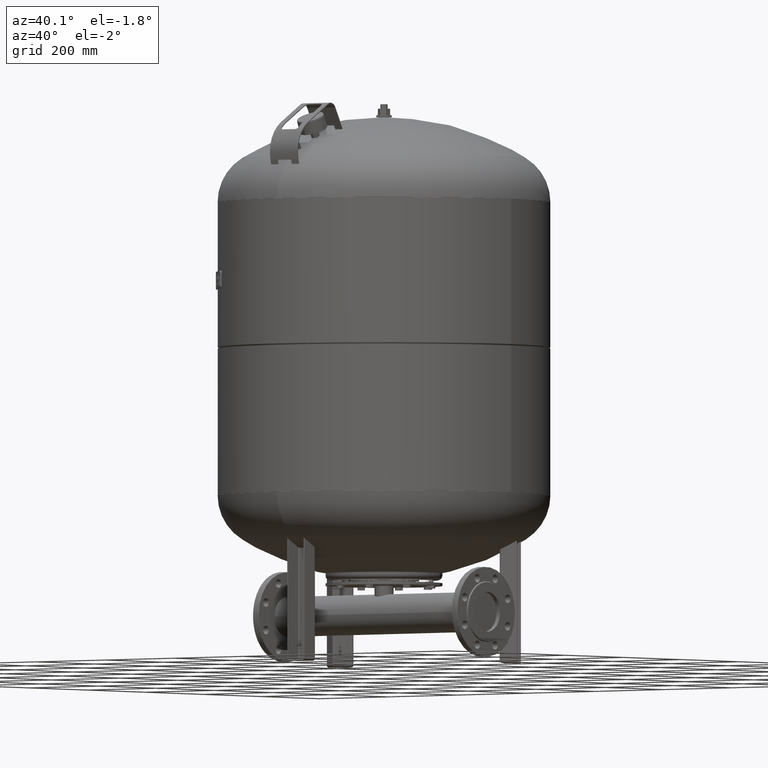
[diagram: clean part render]
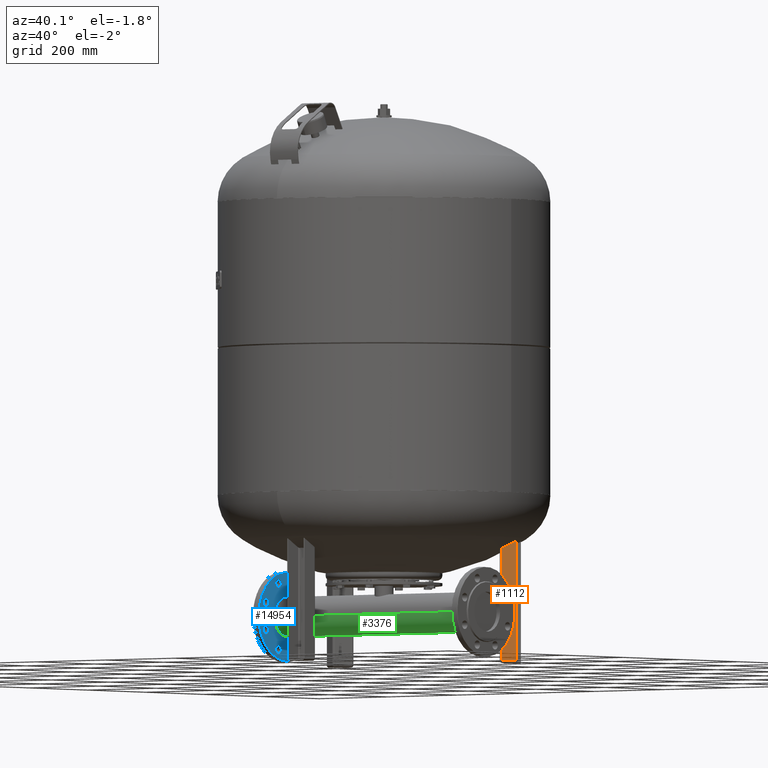
[diagram: same view with three faces highlighted in distinct colors, each labeled with its STEP entity id]
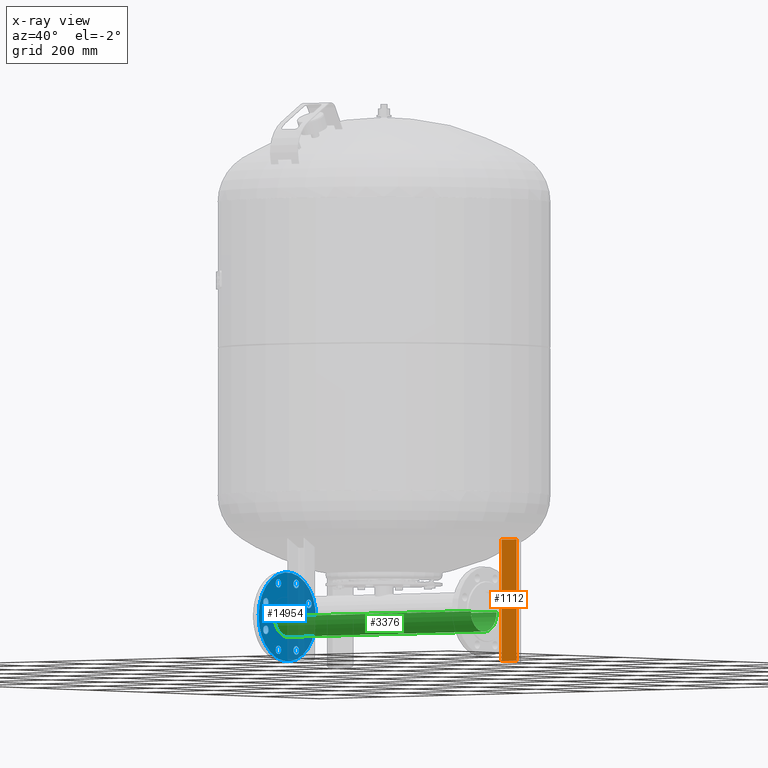
[diagram: x-ray of the same camera — body ghosted, the three highlighted faces saturated]
A machine part, auxiliary view with three faces highlighted in distinct colors.
The next image is the same camera in x-ray (body ghosted, the three faces saturated) — at least one of them is partly hidden behind the body in this view.
Their STEP definitions:

[orange] entity #1112 — the highlighted planar face has unit normal (0.5, -0.866, -0).
#284=CARTESIAN_POINT('',(246.326859021798440,113.349364905388970,274.0));
#285=VERTEX_POINT('',#284);
#293=CARTESIAN_POINT('',(275.771722750469340,130.349364905388970,274.0));
#294=VERTEX_POINT('',#293);
#295=CARTESIAN_POINT('',(275.771722750469340,130.349364905388970,274.0));
#296=DIRECTION('',(-0.866025403784438,-0.500000000000000,0.0));
#297=VECTOR('',#296,33.999999999999986);
#298=LINE('',#295,#297);
#299=EDGE_CURVE('',#294,#285,#298,.T.);
#604=CARTESIAN_POINT('',(275.771722750469340,130.349364905388970,4.999999999999996));
#605=VERTEX_POINT('',#604);
#606=CARTESIAN_POINT('',(275.771722750469340,130.349364905388970,4.999999999999996));
#607=DIRECTION('',(0.0,0.0,1.0));
#608=VECTOR('',#607,269.0);
#609=LINE('',#606,#608);
#610=EDGE_CURVE('',#605,#294,#609,.T.);
#987=CARTESIAN_POINT('',(246.326859021798440,113.349364905388980,4.999999999999996));
#988=VERTEX_POINT('',#987);
#989=CARTESIAN_POINT('',(275.771722750469340,130.349364905388970,4.999999999999996));
#990=DIRECTION('',(-0.866025403784439,-0.500000000000000,0.0));
#991=VECTOR('',#990,33.999999999999979);
#992=LINE('',#989,#991);
#993=EDGE_CURVE('',#605,#988,#992,.T.);
#1090=CARTESIAN_POINT('',(246.326859021798440,113.349364905388980,4.999999999999996));
#1091=DIRECTION('',(0.0,0.0,1.0));
#1092=VECTOR('',#1091,269.0);
#1093=LINE('',#1090,#1092);
#1094=EDGE_CURVE('',#988,#285,#1093,.T.);
#1101=CARTESIAN_POINT('',(276.637748154253810,130.849364905388970,-4.592425E-015));
#1102=DIRECTION('',(0.500000000000000,-0.866025403784439,-1.836970E-016));
#1103=DIRECTION('',(0.866025403784439,0.500000000000000,4.078893E-032));
#1104=AXIS2_PLACEMENT_3D('',#1101,#1102,#1103);
#1105=PLANE('',#1104);
#1106=ORIENTED_EDGE('',*,*,#610,.T.);
#1107=ORIENTED_EDGE('',*,*,#299,.T.);
#1108=ORIENTED_EDGE('',*,*,#1094,.F.);
#1109=ORIENTED_EDGE('',*,*,#993,.F.);
#1110=EDGE_LOOP('',(#1106,#1107,#1108,#1109));
#1111=FACE_OUTER_BOUND('',#1110,.T.);
#1112=ADVANCED_FACE('',(#1111),#1105,.T.);

[blue] entity #14954 — the highlighted face is a freeform B-spline surface patch.
#13961=CARTESIAN_POINT('',(-281.0,-34.250167196675491,175.133507042045720));
#13962=VERTEX_POINT('',#13961);
#13971=CARTESIAN_POINT('',(-281.0,-26.979181981738783,192.687218159760160));
#13972=VERTEX_POINT('',#13971);
#13973=CARTESIAN_POINT('',(-281.0,-30.614674589207137,183.910362600902940));
#13974=DIRECTION('',(1.000000000000000,7.029548E-017,1.697083E-016));
#13975=DIRECTION('',(1.836910E-016,-0.382683432365090,-0.923879532511287));
#13976=AXIS2_PLACEMENT_3D('',#13973,#13974,#13975);
#13977=CIRCLE('',#13976,9.500000000000000);
#13978=EDGE_CURVE('',#13962,#13972,#13977,.T.);
#14024=CARTESIAN_POINT('',(-281.0,-77.545855208371279,131.837819030350000));
#14025=VERTEX_POINT('',#14024);
#14034=CARTESIAN_POINT('',(-281.0,-70.274869993434578,149.391530148064450));
#14035=VERTEX_POINT('',#14034);
#14036=CARTESIAN_POINT('',(-281.0,-73.910362600902928,140.614674589207230));
#14037=DIRECTION('',(1.000000000000000,7.029548E-017,1.697083E-016));
#14038=DIRECTION('',(1.836910E-016,-0.382683432365090,-0.923879532511287));
#14039=AXIS2_PLACEMENT_3D('',#14036,#14037,#14038);
#14040=CIRCLE('',#14039,9.500000000000000);
#14041=EDGE_CURVE('',#14025,#14035,#14040,.T.);
#14087=CARTESIAN_POINT('',(-281.0,-77.545855208371307,70.608469851935624));
#14088=VERTEX_POINT('',#14087);
#14097=CARTESIAN_POINT('',(-281.0,-70.274869993434606,88.162180969650080));
#14098=VERTEX_POINT('',#14097);
#14099=CARTESIAN_POINT('',(-281.0,-73.910362600902957,79.385325410792859));
#14100=DIRECTION('',(1.000000000000000,7.029548E-017,1.697083E-016));
#14101=DIRECTION('',(1.836910E-016,-0.382683432365090,-0.923879532511287));
#14102=AXIS2_PLACEMENT_3D('',#14099,#14100,#14101);
#14103=CIRCLE('',#14102,9.500000000000000);
#14104=EDGE_CURVE('',#14088,#14098,#14103,.T.);
#14150=CARTESIAN_POINT('',(-281.0,-34.250167196675619,27.312781840239865));
#14151=VERTEX_POINT('',#14150);
#14160=CARTESIAN_POINT('',(-281.0,-26.979181981738918,44.866492957954307));
#14161=VERTEX_POINT('',#14160);
#14162=CARTESIAN_POINT('',(-281.0,-30.614674589207269,36.089637399097086));
#14163=DIRECTION('',(1.000000000000000,7.029548E-017,1.697083E-016));
#14164=DIRECTION('',(1.836910E-016,-0.382683432365090,-0.923879532511287));
#14165=AXIS2_PLACEMENT_3D('',#14162,#14163,#14164);
#14166=CIRCLE('',#14165,9.500000000000000);
#14167=EDGE_CURVE('',#14151,#14161,#14166,.T.);
#14213=CARTESIAN_POINT('',(-281.0,26.979181981738751,27.312781840239808));
#14214=VERTEX_POINT('',#14213);
#14223=CARTESIAN_POINT('',(-281.0,34.250167196675456,44.866492957954250));
#14224=VERTEX_POINT('',#14223);
#14225=CARTESIAN_POINT('',(-281.0,30.614674589207102,36.089637399097029));
#14226=DIRECTION('',(1.000000000000000,7.029548E-017,1.697083E-016));
#14227=DIRECTION('',(1.836910E-016,-0.382683432365090,-0.923879532511287));
#14228=AXIS2_PLACEMENT_3D('',#14225,#14226,#14227);
#14229=CIRCLE('',#14228,9.500000000000000);
#14230=EDGE_CURVE('',#14214,#14224,#14229,.T.);
#14276=CARTESIAN_POINT('',(-281.0,70.274869993434592,70.608469851935595));
#14277=VERTEX_POINT('',#14276);
#14286=CARTESIAN_POINT('',(-281.0,77.545855208371293,88.162180969650038));
#14287=VERTEX_POINT('',#14286);
#14288=CARTESIAN_POINT('',(-281.0,73.910362600902943,79.385325410792817));
#14289=DIRECTION('',(1.000000000000000,7.029548E-017,1.697083E-016));
#14290=DIRECTION('',(1.836910E-016,-0.382683432365090,-0.923879532511287));
#14291=AXIS2_PLACEMENT_3D('',#14288,#14289,#14290);
#14292=CIRCLE('',#14291,9.500000000000000);
#14293=EDGE_CURVE('',#14277,#14287,#14292,.T.);
#14339=CARTESIAN_POINT('',(-281.0,70.274869993434592,131.837819030349950));
#14340=VERTEX_POINT('',#14339);
#14349=CARTESIAN_POINT('',(-281.0,77.545855208371293,149.391530148064390));
#14350=VERTEX_POINT('',#14349);
#14351=CARTESIAN_POINT('',(-281.0,73.910362600902943,140.614674589207170));
#14352=DIRECTION('',(1.000000000000000,7.029548E-017,1.697083E-016));
#14353=DIRECTION('',(1.836910E-016,-0.382683432365090,-0.923879532511287));
#14354=AXIS2_PLACEMENT_3D('',#14351,#14352,#14353);
#14355=CIRCLE('',#14354,9.500000000000000);
#14356=EDGE_CURVE('',#14340,#14350,#14355,.T.);
#14402=CARTESIAN_POINT('',(-281.0,26.979181981738854,175.133507042045720));
#14403=VERTEX_POINT('',#14402);
#14412=CARTESIAN_POINT('',(-281.0,34.250167196675562,192.687218159760160));
#14413=VERTEX_POINT('',#14412);
#14414=CARTESIAN_POINT('',(-281.0,30.614674589207208,183.910362600902940));
#14415=DIRECTION('',(1.000000000000000,7.029548E-017,1.697083E-016));
#14416=DIRECTION('',(1.836910E-016,-0.382683432365090,-0.923879532511287));
#14417=AXIS2_PLACEMENT_3D('',#14414,#14415,#14416);
#14418=CIRCLE('',#14417,9.500000000000000);
#14419=EDGE_CURVE('',#14403,#14413,#14418,.T.);
#14700=CARTESIAN_POINT('',(-281.0,-37.885659804143891,18.535926281382615));
#14701=VERTEX_POINT('',#14700);
#14710=CARTESIAN_POINT('',(-281.0,37.885659804143884,201.464073718617410));
#14711=VERTEX_POINT('',#14710);
#14719=CARTESIAN_POINT('',(-281.0,1.335614E-015,110.0));
#14720=DIRECTION('',(1.000000000000000,7.029548E-017,1.697083E-016));
#14721=DIRECTION('',(-1.836910E-016,0.382683432365083,0.923879532511289));
#14722=AXIS2_PLACEMENT_3D('',#14719,#14720,#14721);
#14723=CIRCLE('',#14722,98.999999999999986);
#14724=EDGE_CURVE('',#14701,#14711,#14723,.T.);
#14808=CARTESIAN_POINT('',(-281.0,1.335614E-015,110.0));
#14809=DIRECTION('',(1.000000000000000,7.029548E-017,1.697083E-016));
#14810=DIRECTION('',(-1.836910E-016,0.382683432365083,0.923879532511289));
#14811=AXIS2_PLACEMENT_3D('',#14808,#14809,#14810);
#14812=CIRCLE('',#14811,98.999999999999986);
#14813=EDGE_CURVE('',#14711,#14701,#14812,.T.);
#14865=CARTESIAN_POINT('',(-281.0,169.003571337468260,180.003571337468260));
#14866=CARTESIAN_POINT('',(-280.999999999999940,70.003571337468230,-59.003571337468202));
#14867=CARTESIAN_POINT('',(-281.0,-70.003571337468202,279.003571337468320));
#14868=CARTESIAN_POINT('',(-281.0,-169.003571337468230,39.996428662531855));
#14869=B_SPLINE_SURFACE_WITH_KNOTS('',1,1,((#14865,#14867),(#14866,#14868)),.UNSPECIFIED.,.F.,.F.,.U.,(2,2),(2,2),(0.0,258.699467045522620),(0.0,258.699467045522620),.UNSPECIFIED.);
#14870=ORIENTED_EDGE('',*,*,#14724,.T.);
#14871=ORIENTED_EDGE('',*,*,#14813,.T.);
#14872=EDGE_LOOP('',(#14870,#14871));
#14873=FACE_OUTER_BOUND('',#14872,.T.);
#14874=ORIENTED_EDGE('',*,*,#13978,.F.);
#14875=CARTESIAN_POINT('',(-281.0,-30.614674589207137,183.910362600902940));
#14876=DIRECTION('',(1.000000000000000,7.029548E-017,1.697083E-016));
#14877=DIRECTION('',(1.836910E-016,-0.382683432365090,-0.923879532511287));
#14878=AXIS2_PLACEMENT_3D('',#14875,#14876,#14877);
#14879=CIRCLE('',#14878,9.500000000000000);
#14880=EDGE_CURVE('',#13972,#13962,#14879,.T.);
#14881=ORIENTED_EDGE('',*,*,#14880,.F.);
#14882=EDGE_LOOP('',(#14874,#14881));
#14883=FACE_BOUND('',#14882,.T.);
#14884=ORIENTED_EDGE('',*,*,#14041,.F.);
#14885=CARTESIAN_POINT('',(-281.0,-73.910362600902928,140.614674589207230));
#14886=DIRECTION('',(1.000000000000000,7.029548E-017,1.697083E-016));
#14887=DIRECTION('',(1.836910E-016,-0.382683432365090,-0.923879532511287));
#14888=AXIS2_PLACEMENT_3D('',#14885,#14886,#14887);
#14889=CIRCLE('',#14888,9.500000000000000);
#14890=EDGE_CURVE('',#14035,#14025,#14889,.T.);
#14891=ORIENTED_EDGE('',*,*,#14890,.F.);
#14892=EDGE_LOOP('',(#14884,#14891));
#14893=FACE_BOUND('',#14892,.T.);
#14894=ORIENTED_EDGE('',*,*,#14104,.F.);
#14895=CARTESIAN_POINT('',(-281.0,-73.910362600902957,79.385325410792859));
#14896=DIRECTION('',(1.000000000000000,7.029548E-017,1.697083E-016));
#14897=DIRECTION('',(1.836910E-016,-0.382683432365090,-0.923879532511287));
#14898=AXIS2_PLACEMENT_3D('',#14895,#14896,#14897);
#14899=CIRCLE('',#14898,9.500000000000000);
#14900=EDGE_CURVE('',#14098,#14088,#14899,.T.);
#14901=ORIENTED_EDGE('',*,*,#14900,.F.);
#14902=EDGE_LOOP('',(#14894,#14901));
#14903=FACE_BOUND('',#14902,.T.);
#14904=ORIENTED_EDGE('',*,*,#14167,.F.);
#14905=CARTESIAN_POINT('',(-281.0,-30.614674589207269,36.089637399097086));
#14906=DIRECTION('',(1.000000000000000,7.029548E-017,1.697083E-016));
#14907=DIRECTION('',(1.836910E-016,-0.382683432365090,-0.923879532511287));
#14908=AXIS2_PLACEMENT_3D('',#14905,#14906,#14907);
#14909=CIRCLE('',#14908,9.500000000000000);
#14910=EDGE_CURVE('',#14161,#14151,#14909,.T.);
#14911=ORIENTED_EDGE('',*,*,#14910,.F.);
#14912=EDGE_LOOP('',(#14904,#14911));
#14913=FACE_BOUND('',#14912,.T.);
#14914=ORIENTED_EDGE('',*,*,#14230,.F.);
#14915=CARTESIAN_POINT('',(-281.0,30.614674589207102,36.089637399097029));
#14916=DIRECTION('',(1.000000000000000,7.029548E-017,1.697083E-016));
#14917=DIRECTION('',(1.836910E-016,-0.382683432365090,-0.923879532511287));
#14918=AXIS2_PLACEMENT_3D('',#14915,#14916,#14917);
#14919=CIRCLE('',#14918,9.500000000000000);
#14920=EDGE_CURVE('',#14224,#14214,#14919,.T.);
#14921=ORIENTED_EDGE('',*,*,#14920,.F.);
#14922=EDGE_LOOP('',(#14914,#14921));
#14923=FACE_BOUND('',#14922,.T.);
#14924=ORIENTED_EDGE('',*,*,#14293,.F.);
#14925=CARTESIAN_POINT('',(-281.0,73.910362600902943,79.385325410792817));
#14926=DIRECTION('',(1.000000000000000,7.029548E-017,1.697083E-016));
#14927=DIRECTION('',(1.836910E-016,-0.382683432365090,-0.923879532511287));
#14928=AXIS2_PLACEMENT_3D('',#14925,#14926,#14927);
#14929=CIRCLE('',#14928,9.500000000000000);
#14930=EDGE_CURVE('',#14287,#14277,#14929,.T.);
#14931=ORIENTED_EDGE('',*,*,#14930,.F.);
#14932=EDGE_LOOP('',(#14924,#14931));
#14933=FACE_BOUND('',#14932,.T.);
#14934=ORIENTED_EDGE('',*,*,#14356,.F.);
#14935=CARTESIAN_POINT('',(-281.0,73.910362600902943,140.614674589207170));
#14936=DIRECTION('',(1.000000000000000,7.029548E-017,1.697083E-016));
#14937=DIRECTION('',(1.836910E-016,-0.382683432365090,-0.923879532511287));
#14938=AXIS2_PLACEMENT_3D('',#14935,#14936,#14937);
#14939=CIRCLE('',#14938,9.500000000000000);
#14940=EDGE_CURVE('',#14350,#14340,#14939,.T.);
#14941=ORIENTED_EDGE('',*,*,#14940,.F.);
#14942=EDGE_LOOP('',(#14934,#14941));
#14943=FACE_BOUND('',#14942,.T.);
#14944=ORIENTED_EDGE('',*,*,#14419,.F.);
#14945=CARTESIAN_POINT('',(-281.0,30.614674589207208,183.910362600902940));
#14946=DIRECTION('',(1.000000000000000,7.029548E-017,1.697083E-016));
#14947=DIRECTION('',(1.836910E-016,-0.382683432365090,-0.923879532511287));
#14948=AXIS2_PLACEMENT_3D('',#14945,#14946,#14947);
#14949=CIRCLE('',#14948,9.500000000000000);
#14950=EDGE_CURVE('',#14413,#14403,#14949,.T.);
#14951=ORIENTED_EDGE('',*,*,#14950,.F.);
#14952=EDGE_LOOP('',(#14944,#14951));
#14953=FACE_BOUND('',#14952,.T.);
#14954=ADVANCED_FACE('',(#14873,#14883,#14893,#14903,#14913,#14923,#14933,#14943,#14953),#14869,.F.);

[green] entity #3376 — the highlighted cylindrical surface (edge-blend (fillet) strip) has radius 44.45 mm, axis along (-1, 0, 0).
#3335=CARTESIAN_POINT('',(-247.500000000000030,0.0,110.000000000000010));
#3336=DIRECTION('',(-1.0,0.0,0.0));
#3337=DIRECTION('',(0.0,-1.0,0.0));
#3338=AXIS2_PLACEMENT_3D('',#3335,#3336,#3337);
#3339=CYLINDRICAL_SURFACE('',#3338,44.450000000000003);
#3340=CARTESIAN_POINT('',(-290.0,-44.450000000000003,110.000000000000010));
#3341=VERTEX_POINT('',#3340);
#3342=CARTESIAN_POINT('',(290.0,-44.450000000000003,110.000000000000010));
#3343=VERTEX_POINT('',#3342);
#3344=CARTESIAN_POINT('',(-290.0,-44.450000000000003,110.000000000000010));
#3345=DIRECTION('',(1.0,0.0,0.0));
#3346=VECTOR('',#3345,580.0);
#3347=LINE('',#3344,#3346);
#3348=EDGE_CURVE('',#3341,#3343,#3347,.T.);
#3349=ORIENTED_EDGE('',*,*,#3348,.F.);
#3350=CARTESIAN_POINT('',(-290.0,44.450000000000003,110.000000000000010));
#3351=VERTEX_POINT('',#3350);
#3352=CARTESIAN_POINT('',(-290.0,0.0,110.000000000000010));
#3353=DIRECTION('',(-1.0,0.0,0.0));
#3354=DIRECTION('',(0.0,-1.0,0.0));
#3355=AXIS2_PLACEMENT_3D('',#3352,#3353,#3354);
#3356=CIRCLE('',#3355,44.450000000000003);
#3357=EDGE_CURVE('',#3351,#3341,#3356,.T.);
#3358=ORIENTED_EDGE('',*,*,#3357,.F.);
#3359=CARTESIAN_POINT('',(290.0,44.450000000000003,110.000000000000010));
#3360=VERTEX_POINT('',#3359);
#3361=CARTESIAN_POINT('',(-290.0,44.450000000000003,110.000000000000010));
#3362=DIRECTION('',(1.0,0.0,0.0));
#3363=VECTOR('',#3362,580.0);
#3364=LINE('',#3361,#3363);
#3365=EDGE_CURVE('',#3351,#3360,#3364,.T.);
#3366=ORIENTED_EDGE('',*,*,#3365,.T.);
#3367=CARTESIAN_POINT('',(290.0,0.0,110.000000000000010));
#3368=DIRECTION('',(-1.0,0.0,0.0));
#3369=DIRECTION('',(0.0,-1.0,0.0));
#3370=AXIS2_PLACEMENT_3D('',#3367,#3368,#3369);
#3371=CIRCLE('',#3370,44.450000000000003);
#3372=EDGE_CURVE('',#3360,#3343,#3371,.T.);
#3373=ORIENTED_EDGE('',*,*,#3372,.T.);
#3374=EDGE_LOOP('',(#3349,#3358,#3366,#3373));
#3375=FACE_OUTER_BOUND('',#3374,.T.);
#3376=ADVANCED_FACE('',(#3375),#3339,.T.);